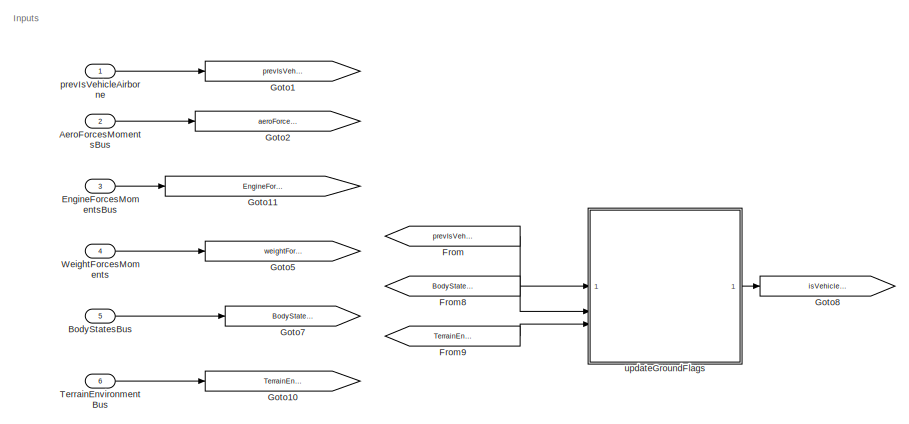
[diagram: root canvas - part 1/2, left side, full height]
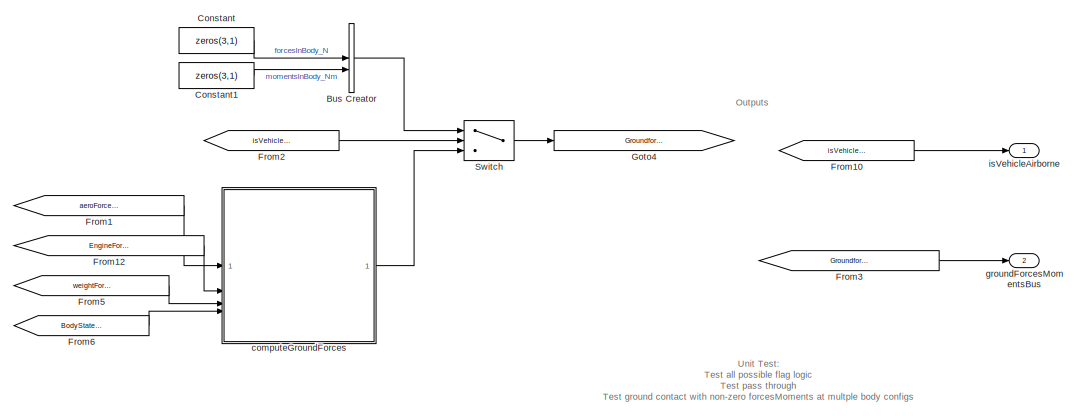
[diagram: root canvas - part 2/2, right side, full height]
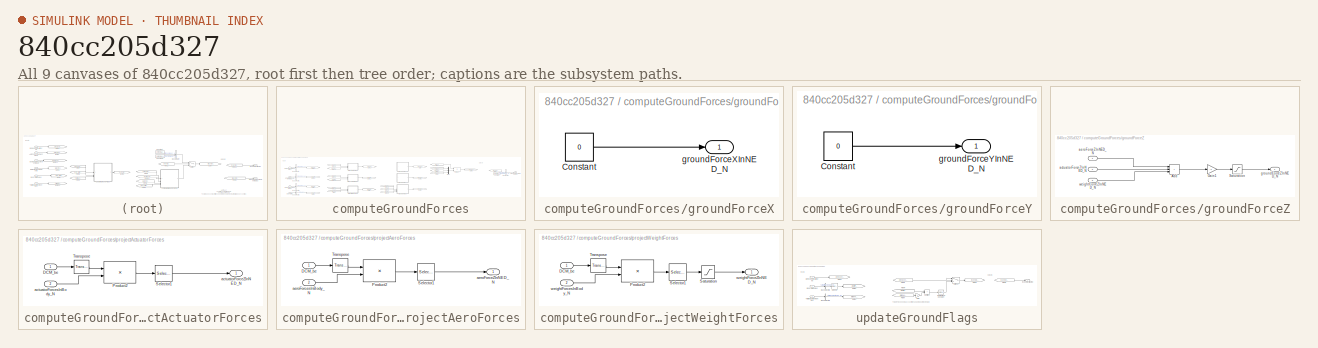
[diagram: thumbnail index - all 9 canvases of the model, root first then tree order]
MODEL slx_840cc205d327
KIND model
BLOCK [Inport] AeroForcesMomentsBus
  OutDataTypeStr = Bus: ComponentForcesMomentsBus
  Port = 2
BLOCK [Inport] BodyStatesBus
  OutDataTypeStr = Bus: BodyStateBus
  Port = 5
BLOCK [BusCreator] Bus Creator
  DisplayOption = bar
  InheritFromInputs = on
  Inputs = 2
  OutDataTypeStr = Bus: ComponentForcesMomentsBus
BLOCK [Constant] Constant
  Value = zeros(3,1)
BLOCK [Constant] Constant1
  Value = zeros(3,1)
BLOCK [Inport] EngineForcesMomentsBus
  OutDataTypeStr = Bus: ComponentForcesMomentsBus
  Port = 3
BLOCK [From] From
  GotoTag = prevIsVehicleAirborne
BLOCK [From] From1
  GotoTag = aeroForcesMomentsBus
BLOCK [From] From10
  GotoTag = isVehicleAirborne
BLOCK [From] From12
  GotoTag = EngineForcesMomentsBus
BLOCK [From] From2
  GotoTag = isVehicleAirborne
BLOCK [From] From3
  GotoTag = GroundforcesMomentsBus
BLOCK [From] From5
  GotoTag = weightForcesMoments
BLOCK [From] From6
  GotoTag = BodyStatesBus
BLOCK [From] From8
  GotoTag = BodyStatesBus
BLOCK [From] From9
  GotoTag = TerrainEnvironmentBus
BLOCK [Goto] Goto1
  GotoTag = prevIsVehicleAirborne
BLOCK [Goto] Goto10
  GotoTag = TerrainEnvironmentBus
BLOCK [Goto] Goto11
  GotoTag = EngineForcesMomentsBus
BLOCK [Goto] Goto2
  GotoTag = aeroForcesMomentsBus
BLOCK [Goto] Goto4
  GotoTag = GroundforcesMomentsBus
BLOCK [Goto] Goto5
  GotoTag = weightForcesMoments
BLOCK [Goto] Goto7
  GotoTag = BodyStatesBus
BLOCK [Goto] Goto8
  GotoTag = isVehicleAirborne
BLOCK [Switch] Switch
  Criteria = u2 > Threshold
  InputSameDT = off
  SaturateOnIntegerOverflow = off
BLOCK [Inport] TerrainEnvironmentBus
  OutDataTypeStr = Bus: TerrainEnvironmentBus
  Port = 6
BLOCK [Inport] WeightForcesMoments
  OutDataTypeStr = Bus: ComponentForcesMomentsBus
  Port = 4
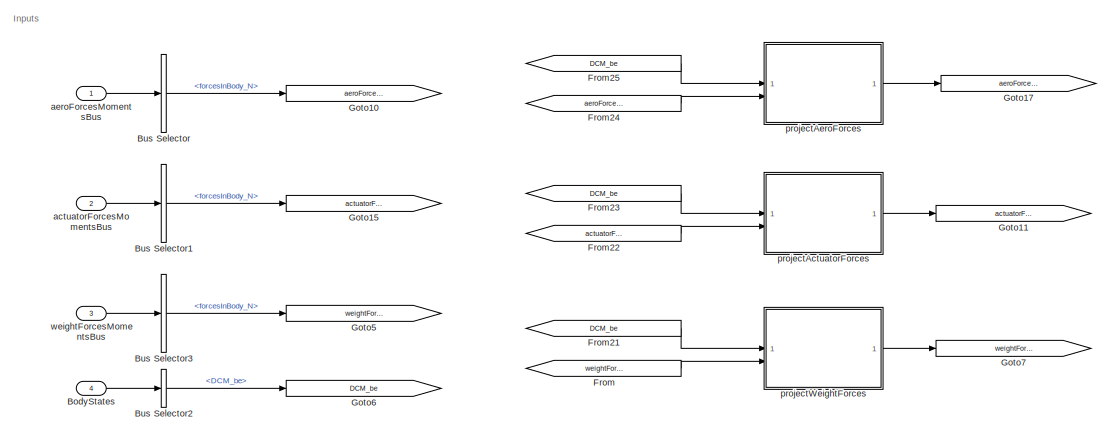
[diagram: computeGroundForces - part 1/3, left side, full height]
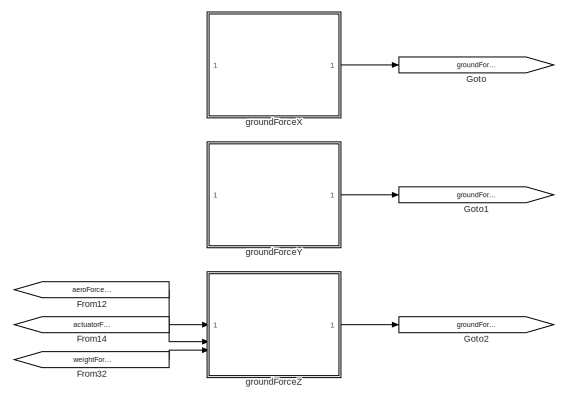
[diagram: computeGroundForces - part 2/3, center side, full height]
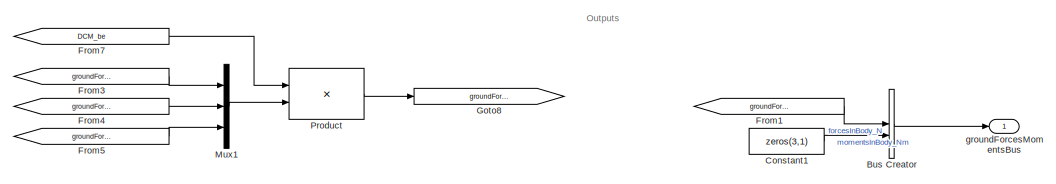
[diagram: computeGroundForces - part 3/3, top right region]
BLOCK [SubSystem] computeGroundForces
BLOCK [Inport] computeGroundForces/BodyStates
  OutDataTypeStr = Bus: BodyStateBus
  Port = 4
BLOCK [BusCreator] computeGroundForces/Bus Creator
  DisplayOption = bar
  InheritFromInputs = on
  Inputs = 2
  OutDataTypeStr = Bus: ComponentForcesMomentsBus
BLOCK [BusSelector] computeGroundForces/Bus Selector
  OutputSignals = forcesInBody_N
BLOCK [BusSelector] computeGroundForces/Bus Selector1
  OutputSignals = forcesInBody_N
BLOCK [BusSelector] computeGroundForces/Bus Selector2
  OutputSignals = DCM_be
BLOCK [BusSelector] computeGroundForces/Bus Selector3
  OutputSignals = forcesInBody_N
BLOCK [Constant] computeGroundForces/Constant1
  Value = zeros(3,1)
BLOCK [From] computeGroundForces/From
  GotoTag = weightForcesInBody_N
BLOCK [From] computeGroundForces/From1
  GotoTag = groundForcesInBody_N
BLOCK [From] computeGroundForces/From12
  GotoTag = aeroForceZInNED_N
BLOCK [From] computeGroundForces/From14
  GotoTag = actuatorForceZInNED_N
BLOCK [From] computeGroundForces/From21
  GotoTag = DCM_be
BLOCK [From] computeGroundForces/From22
  GotoTag = actuatorForcesInBody_N
BLOCK [From] computeGroundForces/From23
  GotoTag = DCM_be
BLOCK [From] computeGroundForces/From24
  GotoTag = aeroForcesInBody_N
BLOCK [From] computeGroundForces/From25
  GotoTag = DCM_be
BLOCK [From] computeGroundForces/From3
  GotoTag = groundForceXInNED_N
BLOCK [From] computeGroundForces/From32
  GotoTag = weightForceZInNED_N
BLOCK [From] computeGroundForces/From4
  GotoTag = groundForceYInNED_N
BLOCK [From] computeGroundForces/From5
  GotoTag = groundForceZInNED_N
BLOCK [From] computeGroundForces/From7
  GotoTag = DCM_be
BLOCK [Goto] computeGroundForces/Goto
  GotoTag = groundForceXInNED_N
BLOCK [Goto] computeGroundForces/Goto1
  GotoTag = groundForceYInNED_N
BLOCK [Goto] computeGroundForces/Goto10
  GotoTag = aeroForcesInBody_N
BLOCK [Goto] computeGroundForces/Goto11
  GotoTag = actuatorForceZInNED_N
BLOCK [Goto] computeGroundForces/Goto15
  GotoTag = actuatorForcesInBody_N
BLOCK [Goto] computeGroundForces/Goto17
  GotoTag = aeroForceZInNED_N
BLOCK [Goto] computeGroundForces/Goto2
  GotoTag = groundForceZInNED_N
BLOCK [Goto] computeGroundForces/Goto5
  GotoTag = weightForcesInBody_N
BLOCK [Goto] computeGroundForces/Goto6
  GotoTag = DCM_be
BLOCK [Goto] computeGroundForces/Goto7
  GotoTag = weightForceZInNED_N
BLOCK [Goto] computeGroundForces/Goto8
  GotoTag = groundForcesInBody_N
BLOCK [Mux] computeGroundForces/Mux1
  DisplayOption = bar
  Inputs = 3
BLOCK [Product] computeGroundForces/Product
  Multiplication = Matrix(*)
BLOCK [Inport] computeGroundForces/actuatorForcesMomentsBus
  OutDataTypeStr = Bus: ComponentForcesMomentsBus
  Port = 2
BLOCK [Inport] computeGroundForces/aeroForcesMomentsBus
  OutDataTypeStr = Bus: ComponentForcesMomentsBus
BLOCK [SubSystem] computeGroundForces/groundForceX
BLOCK [Constant] computeGroundForces/groundForceX/Constant
  Value = 0
BLOCK [Outport] computeGroundForces/groundForceX/groundForceXInNED_N
BLOCK [SubSystem] computeGroundForces/groundForceY
BLOCK [Constant] computeGroundForces/groundForceY/Constant
  Value = 0
BLOCK [Outport] computeGroundForces/groundForceY/groundForceYInNED_N
BLOCK [SubSystem] computeGroundForces/groundForceZ
BLOCK [Sum] computeGroundForces/groundForceZ/Add
  IconShape = rectangular
  Inputs = +++
BLOCK [Gain] computeGroundForces/groundForceZ/Gain1
  Gain = -1
BLOCK [Saturate] computeGroundForces/groundForceZ/Saturation
  LowerLimit = -inf
  UpperLimit = 0
BLOCK [Inport] computeGroundForces/groundForceZ/actuatorForceZInNED_N
  Port = 2
BLOCK [Inport] computeGroundForces/groundForceZ/aeroForceZInNED_N
BLOCK [Outport] computeGroundForces/groundForceZ/groundForceZInNED_N
BLOCK [Inport] computeGroundForces/groundForceZ/weightForceZInNED_N
  Port = 3
BLOCK [Outport] computeGroundForces/groundForcesMomentsBus
  OutDataTypeStr = Bus: ComponentForcesMomentsBus
BLOCK [SubSystem] computeGroundForces/projectActuatorForces
BLOCK [Inport] computeGroundForces/projectActuatorForces/DCM_be
BLOCK [Product] computeGroundForces/projectActuatorForces/Product2
  Multiplication = Matrix(*)
BLOCK [Selector] computeGroundForces/projectActuatorForces/Selector1
  IndexOptions = Index vector (dialog)
  Indices = [3]
  InputPortWidth = 3
  OutputSizes = 1
BLOCK [Reference] computeGroundForces/projectActuatorForces/Transpose  REF=matrix_library/Transpose
  LibrarySourceBlock = simulink/Matrix\nOperations/Transpose
  SourceBlock = matrix_library/Transpose
  SourceType = Transpose
BLOCK [Outport] computeGroundForces/projectActuatorForces/actuatorForceZInNED_N
BLOCK [Inport] computeGroundForces/projectActuatorForces/actuatorForcesInBody_N
  Port = 2
BLOCK [SubSystem] computeGroundForces/projectAeroForces
BLOCK [Inport] computeGroundForces/projectAeroForces/DCM_be
BLOCK [Product] computeGroundForces/projectAeroForces/Product2
  Multiplication = Matrix(*)
BLOCK [Selector] computeGroundForces/projectAeroForces/Selector1
  IndexOptions = Index vector (dialog)
  Indices = [3]
  InputPortWidth = 3
  OutputSizes = 1
BLOCK [Reference] computeGroundForces/projectAeroForces/Transpose  REF=matrix_library/Transpose
  LibrarySourceBlock = simulink/Matrix\nOperations/Transpose
  SourceBlock = matrix_library/Transpose
  SourceType = Transpose
BLOCK [Outport] computeGroundForces/projectAeroForces/aeroForceZInNED_N
BLOCK [Inport] computeGroundForces/projectAeroForces/aeroForcesInBody_N
  Port = 2
BLOCK [SubSystem] computeGroundForces/projectWeightForces
BLOCK [Inport] computeGroundForces/projectWeightForces/DCM_be
BLOCK [Product] computeGroundForces/projectWeightForces/Product2
  Multiplication = Matrix(*)
BLOCK [Saturate] computeGroundForces/projectWeightForces/Saturation
  LowerLimit = 0
  UpperLimit = Inf
BLOCK [Selector] computeGroundForces/projectWeightForces/Selector1
  IndexOptions = Index vector (dialog)
  Indices = [3]
  InputPortWidth = 3
  OutputSizes = 1
BLOCK [Reference] computeGroundForces/projectWeightForces/Transpose  REF=matrix_library/Transpose
  LibrarySourceBlock = simulink/Matrix\nOperations/Transpose
  SourceBlock = matrix_library/Transpose
  SourceType = Transpose
BLOCK [Outport] computeGroundForces/projectWeightForces/weightForceZInNED_N
BLOCK [Inport] computeGroundForces/projectWeightForces/weightForcesInBody_N
  Port = 2
BLOCK [Inport] computeGroundForces/weightForcesMomentsBus
  OutDataTypeStr = Bus: ComponentForcesMomentsBus
  Port = 3
BLOCK [Outport] groundForcesMomentsBus
  OutDataTypeStr = Bus: ComponentForcesMomentsBus
  Port = 2
BLOCK [Outport] isVehicleAirborne
  OutDataTypeStr = boolean
BLOCK [Inport] prevIsVehicleAirborne
  OutDataTypeStr = boolean
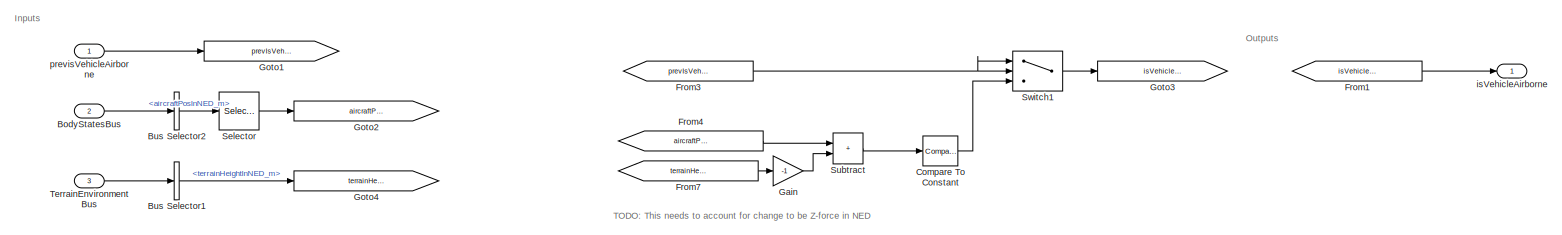
[diagram: updateGroundFlags - part 1/1, most of the canvas]
BLOCK [SubSystem] updateGroundFlags
BLOCK [Inport] updateGroundFlags/BodyStatesBus
  OutDataTypeStr = Bus: BodyStateBus
  Port = 2
BLOCK [BusSelector] updateGroundFlags/Bus Selector1
  OutputSignals = terrainHeightInNED_m
BLOCK [BusSelector] updateGroundFlags/Bus Selector2
  OutputSignals = aircraftPosInNED_m
BLOCK [Reference] updateGroundFlags/Compare To Constant  REF=simulink/Logic and Bit
Operations/Compare
To Constant
  SourceBlock = simulink/Logic and Bit\nOperations/Compare\nTo Constant
  SourceType = Compare To Constant
BLOCK [From] updateGroundFlags/From1
  GotoTag = isVehicleAirborne
BLOCK [From] updateGroundFlags/From3
  GotoTag = prevIsVehicleAirborne
BLOCK [From] updateGroundFlags/From4
  GotoTag = aircraftPosZInNED_m
BLOCK [From] updateGroundFlags/From7
  GotoTag = terrainHeightInNED_m
BLOCK [Gain] updateGroundFlags/Gain
  Gain = -1
BLOCK [Goto] updateGroundFlags/Goto1
  GotoTag = prevIsVehicleAirborne
BLOCK [Goto] updateGroundFlags/Goto2
  GotoTag = aircraftPosZInNED_m
BLOCK [Goto] updateGroundFlags/Goto3
  GotoTag = isVehicleAirborne
BLOCK [Goto] updateGroundFlags/Goto4
  GotoTag = terrainHeightInNED_m
BLOCK [Selector] updateGroundFlags/Selector
  IndexOptions = Index vector (dialog)
  Indices = 3
  InputPortWidth = 3
  OutputSizes = 1
BLOCK [Sum] updateGroundFlags/Subtract
  IconShape = rectangular
BLOCK [Switch] updateGroundFlags/Switch1
  Criteria = u2 > Threshold
  InputSameDT = off
  SaturateOnIntegerOverflow = off
BLOCK [Inport] updateGroundFlags/TerrainEnvironmentBus
  OutDataTypeStr = Bus: TerrainEnvironmentBus
  Port = 3
BLOCK [Outport] updateGroundFlags/isVehicleAirborne
  OutDataTypeStr = boolean
BLOCK [Inport] updateGroundFlags/previsVehicleAirborne
  OutDataTypeStr = boolean
ANNOTATION (root): Unit Test: Test all possible flag logic Test pass through Test ground contact with non-zero forcesMoments at multple body configs
ANNOTATION (root): Inputs
ANNOTATION (root): Outputs
ANNOTATION computeGroundForces: Inputs
ANNOTATION computeGroundForces: Outputs
ANNOTATION updateGroundFlags: Inputs
ANNOTATION updateGroundFlags: Outputs
ANNOTATION updateGroundFlags: TODO: This needs to account for change to be Z-force in NED
LINE AeroForcesMomentsBus:1 -> Goto2:1
LINE BodyStatesBus:1 -> Goto7:1
LINE Bus Creator:1 -> Switch:1
LINE Constant1:1 -> Bus Creator:2
LINE Constant:1 -> Bus Creator:1
LINE EngineForcesMomentsBus:1 -> Goto11:1
LINE From10:1 -> isVehicleAirborne:1
LINE From12:1 -> computeGroundForces:2
LINE From1:1 -> computeGroundForces:1
LINE From2:1 -> Switch:2
LINE From3:1 -> groundForcesMomentsBus:1
LINE From5:1 -> computeGroundForces:3
LINE From6:1 -> computeGroundForces:4
LINE From8:1 -> updateGroundFlags:2
LINE From9:1 -> updateGroundFlags:3
LINE From:1 -> updateGroundFlags:1
LINE Switch:1 -> Goto4:1
LINE TerrainEnvironmentBus:1 -> Goto10:1
LINE WeightForcesMoments:1 -> Goto5:1
LINE computeGroundForces/BodyStates:1 -> computeGroundForces/Bus Selector2:1
LINE computeGroundForces/Bus Creator:1 -> computeGroundForces/groundForcesMomentsBus:1
LINE computeGroundForces/Bus Selector1:1 -> computeGroundForces/Goto15:1
LINE computeGroundForces/Bus Selector2:1 -> computeGroundForces/Goto6:1
LINE computeGroundForces/Bus Selector3:1 -> computeGroundForces/Goto5:1
LINE computeGroundForces/Bus Selector:1 -> computeGroundForces/Goto10:1
LINE computeGroundForces/Constant1:1 -> computeGroundForces/Bus Creator:2
LINE computeGroundForces/From12:1 -> computeGroundForces/groundForceZ:1
LINE computeGroundForces/From14:1 -> computeGroundForces/groundForceZ:2
LINE computeGroundForces/From1:1 -> computeGroundForces/Bus Creator:1
LINE computeGroundForces/From21:1 -> computeGroundForces/projectWeightForces:1
LINE computeGroundForces/From22:1 -> computeGroundForces/projectActuatorForces:2
LINE computeGroundForces/From23:1 -> computeGroundForces/projectActuatorForces:1
LINE computeGroundForces/From24:1 -> computeGroundForces/projectAeroForces:2
LINE computeGroundForces/From25:1 -> computeGroundForces/projectAeroForces:1
LINE computeGroundForces/From32:1 -> computeGroundForces/groundForceZ:3
LINE computeGroundForces/From3:1 -> computeGroundForces/Mux1:1
LINE computeGroundForces/From4:1 -> computeGroundForces/Mux1:2
LINE computeGroundForces/From5:1 -> computeGroundForces/Mux1:3
LINE computeGroundForces/From7:1 -> computeGroundForces/Product:1
LINE computeGroundForces/From:1 -> computeGroundForces/projectWeightForces:2
LINE computeGroundForces/Mux1:1 -> computeGroundForces/Product:2
LINE computeGroundForces/Product:1 -> computeGroundForces/Goto8:1
LINE computeGroundForces/actuatorForcesMomentsBus:1 -> computeGroundForces/Bus Selector1:1
LINE computeGroundForces/aeroForcesMomentsBus:1 -> computeGroundForces/Bus Selector:1
LINE computeGroundForces/groundForceX/Constant:1 -> computeGroundForces/groundForceX/groundForceXInNED_N:1
LINE computeGroundForces/groundForceX:1 -> computeGroundForces/Goto:1
LINE computeGroundForces/groundForceY/Constant:1 -> computeGroundForces/groundForceY/groundForceYInNED_N:1
LINE computeGroundForces/groundForceY:1 -> computeGroundForces/Goto1:1
LINE computeGroundForces/groundForceZ/Add:1 -> computeGroundForces/groundForceZ/Gain1:1
LINE computeGroundForces/groundForceZ/Gain1:1 -> computeGroundForces/groundForceZ/Saturation:1
LINE computeGroundForces/groundForceZ/Saturation:1 -> computeGroundForces/groundForceZ/groundForceZInNED_N:1
LINE computeGroundForces/groundForceZ/actuatorForceZInNED_N:1 -> computeGroundForces/groundForceZ/Add:2
LINE computeGroundForces/groundForceZ/aeroForceZInNED_N:1 -> computeGroundForces/groundForceZ/Add:1
LINE computeGroundForces/groundForceZ/weightForceZInNED_N:1 -> computeGroundForces/groundForceZ/Add:3
LINE computeGroundForces/groundForceZ:1 -> computeGroundForces/Goto2:1
LINE computeGroundForces/projectActuatorForces/DCM_be:1 -> computeGroundForces/projectActuatorForces/Transpose:1
LINE computeGroundForces/projectActuatorForces/Product2:1 -> computeGroundForces/projectActuatorForces/Selector1:1
LINE computeGroundForces/projectActuatorForces/Selector1:1 -> computeGroundForces/projectActuatorForces/actuatorForceZInNED_N:1
LINE computeGroundForces/projectActuatorForces/Transpose:1 -> computeGroundForces/projectActuatorForces/Product2:1
LINE computeGroundForces/projectActuatorForces/actuatorForcesInBody_N:1 -> computeGroundForces/projectActuatorForces/Product2:2
LINE computeGroundForces/projectActuatorForces:1 -> computeGroundForces/Goto11:1
LINE computeGroundForces/projectAeroForces/DCM_be:1 -> computeGroundForces/projectAeroForces/Transpose:1
LINE computeGroundForces/projectAeroForces/Product2:1 -> computeGroundForces/projectAeroForces/Selector1:1
LINE computeGroundForces/projectAeroForces/Selector1:1 -> computeGroundForces/projectAeroForces/aeroForceZInNED_N:1
LINE computeGroundForces/projectAeroForces/Transpose:1 -> computeGroundForces/projectAeroForces/Product2:1
LINE computeGroundForces/projectAeroForces/aeroForcesInBody_N:1 -> computeGroundForces/projectAeroForces/Product2:2
LINE computeGroundForces/projectAeroForces:1 -> computeGroundForces/Goto17:1
LINE computeGroundForces/projectWeightForces/DCM_be:1 -> computeGroundForces/projectWeightForces/Transpose:1
LINE computeGroundForces/projectWeightForces/Product2:1 -> computeGroundForces/projectWeightForces/Selector1:1
LINE computeGroundForces/projectWeightForces/Saturation:1 -> computeGroundForces/projectWeightForces/weightForceZInNED_N:1
LINE computeGroundForces/projectWeightForces/Selector1:1 -> computeGroundForces/projectWeightForces/Saturation:1
LINE computeGroundForces/projectWeightForces/Transpose:1 -> computeGroundForces/projectWeightForces/Product2:1
LINE computeGroundForces/projectWeightForces/weightForcesInBody_N:1 -> computeGroundForces/projectWeightForces/Product2:2
LINE computeGroundForces/projectWeightForces:1 -> computeGroundForces/Goto7:1
LINE computeGroundForces/weightForcesMomentsBus:1 -> computeGroundForces/Bus Selector3:1
LINE computeGroundForces:1 -> Switch:3
LINE prevIsVehicleAirborne:1 -> Goto1:1
LINE updateGroundFlags/BodyStatesBus:1 -> updateGroundFlags/Bus Selector2:1
LINE updateGroundFlags/Bus Selector1:1 -> updateGroundFlags/Goto4:1
LINE updateGroundFlags/Bus Selector2:1 -> updateGroundFlags/Selector:1
LINE updateGroundFlags/Compare To Constant:1 -> updateGroundFlags/Switch1:3
LINE updateGroundFlags/From1:1 -> updateGroundFlags/isVehicleAirborne:1
NET updateGroundFlags/From3:1 -> updateGroundFlags/Switch1:1, updateGroundFlags/Switch1:2
LINE updateGroundFlags/From4:1 -> updateGroundFlags/Subtract:1
LINE updateGroundFlags/From7:1 -> updateGroundFlags/Gain:1
LINE updateGroundFlags/Gain:1 -> updateGroundFlags/Subtract:2
LINE updateGroundFlags/Selector:1 -> updateGroundFlags/Goto2:1
LINE updateGroundFlags/Subtract:1 -> updateGroundFlags/Compare To Constant:1
LINE updateGroundFlags/Switch1:1 -> updateGroundFlags/Goto3:1
LINE updateGroundFlags/TerrainEnvironmentBus:1 -> updateGroundFlags/Bus Selector1:1
LINE updateGroundFlags/previsVehicleAirborne:1 -> updateGroundFlags/Goto1:1
LINE updateGroundFlags:1 -> Goto8:1
note: NET lines group one-source signal fan-out (src -> all destinations, sorted); 1:1 wires keep LINE
